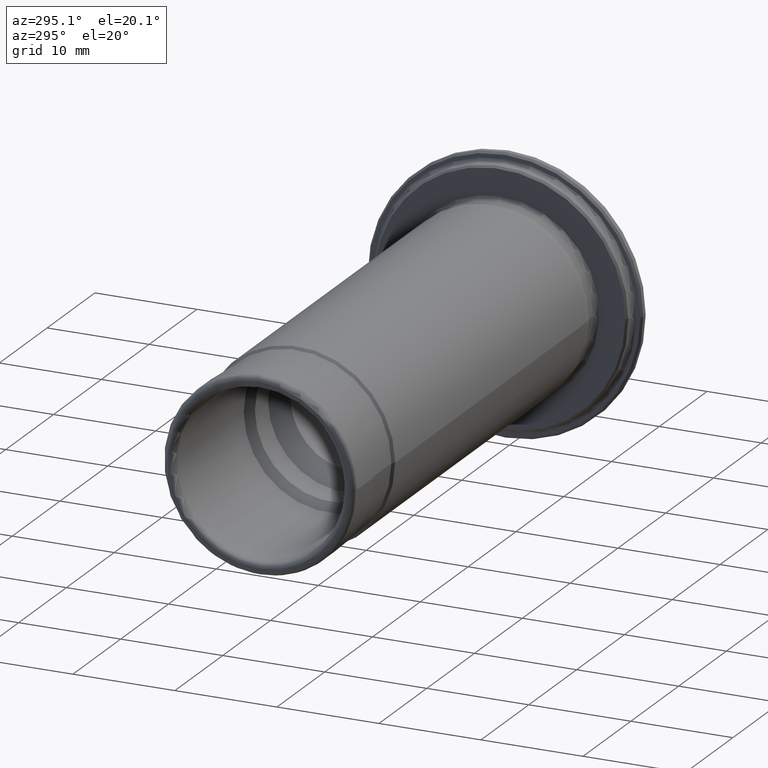
[diagram: clean part render]
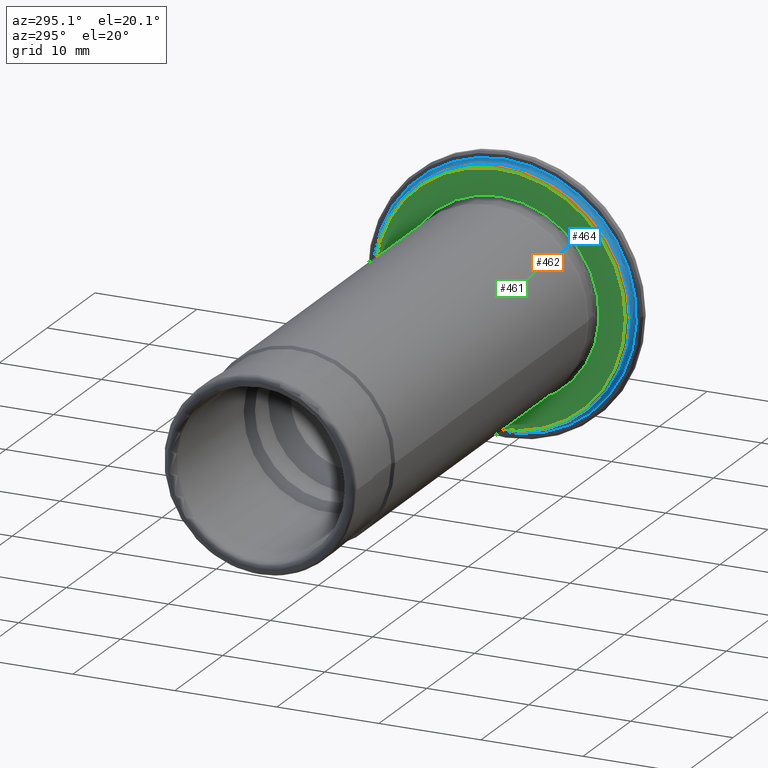
[diagram: same view with three faces highlighted in distinct colors, each labeled with its STEP entity id]
A machine part, auxiliary view with three faces highlighted in distinct colors.
Their STEP definitions:

[orange] entity #462 — the highlighted conical surface has half-angle 45 deg.
#25=CONICAL_SURFACE('',#533,12.4000000000002,0.785398163396198);
#37=LINE('',#807,#54);
#54=VECTOR('',#652,12.4000000000002);
#84=FACE_OUTER_BOUND('',#114,.T.);
#114=EDGE_LOOP('',(#335,#336,#337,#338));
#153=CIRCLE('',#532,12.3000000000001);
#154=CIRCLE('',#534,12.5000000000002);
#197=VERTEX_POINT('',#802);
#198=VERTEX_POINT('',#805);
#246=EDGE_CURVE('',#197,#197,#153,.T.);
#247=EDGE_CURVE('',#198,#198,#154,.T.);
#248=EDGE_CURVE('',#198,#197,#37,.T.);
#335=ORIENTED_EDGE('',*,*,#247,.F.);
#336=ORIENTED_EDGE('',*,*,#248,.T.);
#337=ORIENTED_EDGE('',*,*,#246,.T.);
#338=ORIENTED_EDGE('',*,*,#248,.F.);
#462=ADVANCED_FACE('',(#84),#25,.T.);
#532=AXIS2_PLACEMENT_3D('',#803,#646,#647);
#533=AXIS2_PLACEMENT_3D('',#804,#648,#649);
#534=AXIS2_PLACEMENT_3D('',#806,#650,#651);
#646=DIRECTION('center_axis',(1.,0.,0.));
#647=DIRECTION('ref_axis',(0.,0.,-1.));
#648=DIRECTION('center_axis',(1.,0.,0.));
#649=DIRECTION('ref_axis',(0.,1.,0.));
#650=DIRECTION('center_axis',(1.,0.,0.));
#651=DIRECTION('ref_axis',(0.,0.,-1.));
#652=DIRECTION('',(-0.707106781187432,0.707106781185663,8.6595605623441E-17));
#802=CARTESIAN_POINT('',(-2.0000000000001,-12.3000000000001,-1.50631556295126E-15));
#803=CARTESIAN_POINT('Origin',(-2.0000000000001,0.,0.));
#804=CARTESIAN_POINT('Origin',(-1.89999999999984,0.,0.));
#805=CARTESIAN_POINT('',(-1.79999999999957,-12.5000000000002,-1.53080849893421E-15));
#806=CARTESIAN_POINT('Origin',(-1.79999999999957,0.,0.));
#807=CARTESIAN_POINT('',(-1.89999999999984,-12.4000000000002,-1.51856203094274E-15));

[blue] entity #464 — the highlighted toroidal blend (fillet) surface has major radius 12.9 mm and minor (blend) radius 0.4 mm.
#86=FACE_OUTER_BOUND('',#116,.T.);
#116=EDGE_LOOP('',(#344,#345,#346,#347,#348));
#155=CIRCLE('',#536,12.4999999999993);
#156=CIRCLE('',#537,12.4999999999993);
#157=CIRCLE('',#539,0.4);
#158=CIRCLE('',#540,12.8999999999993);
#199=VERTEX_POINT('',#809);
#200=VERTEX_POINT('',#810);
#201=VERTEX_POINT('',#815);
#249=EDGE_CURVE('',#199,#200,#155,.T.);
#251=EDGE_CURVE('',#200,#199,#156,.T.);
#252=EDGE_CURVE('',#200,#201,#157,.T.);
#253=EDGE_CURVE('',#201,#201,#158,.T.);
#344=ORIENTED_EDGE('',*,*,#249,.T.);
#345=ORIENTED_EDGE('',*,*,#252,.T.);
#346=ORIENTED_EDGE('',*,*,#253,.F.);
#347=ORIENTED_EDGE('',*,*,#252,.F.);
#348=ORIENTED_EDGE('',*,*,#251,.T.);
#416=TOROIDAL_SURFACE('',#538,12.8999999999993,0.4);
#464=ADVANCED_FACE('',(#86),#416,.F.);
#536=AXIS2_PLACEMENT_3D('',#811,#655,#656);
#537=AXIS2_PLACEMENT_3D('',#813,#658,#659);
#538=AXIS2_PLACEMENT_3D('',#814,#660,#661);
#539=AXIS2_PLACEMENT_3D('',#816,#662,#663);
#540=AXIS2_PLACEMENT_3D('',#817,#664,#665);
#655=DIRECTION('center_axis',(1.,0.,0.));
#656=DIRECTION('ref_axis',(0.,0.,-1.));
#658=DIRECTION('center_axis',(1.,0.,0.));
#659=DIRECTION('ref_axis',(0.,0.,-1.));
#660=DIRECTION('center_axis',(1.,0.,0.));
#661=DIRECTION('ref_axis',(0.,0.,-1.));
#662=DIRECTION('center_axis',(0.,-1.,-1.22464679914735E-16));
#663=DIRECTION('ref_axis',(0.,-1.22464679914735E-16,1.));
#664=DIRECTION('center_axis',(1.,0.,0.));
#665=DIRECTION('ref_axis',(0.,0.,-1.));
#809=CARTESIAN_POINT('',(-1.4000000000027,-12.4999999999997,-1.53080849893416E-15));
#810=CARTESIAN_POINT('',(-1.4000000000027,-1.53080849893411E-15,12.4999999999993));
#811=CARTESIAN_POINT('Origin',(-1.4000000000027,0.,0.));
#813=CARTESIAN_POINT('Origin',(-1.4000000000027,0.,0.));
#814=CARTESIAN_POINT('Origin',(-1.40000000000177,0.,0.));
#815=CARTESIAN_POINT('',(-1.00000000000177,-1.5797943709E-15,12.8999999999993));
#816=CARTESIAN_POINT('Origin',(-1.40000000000177,-1.5797943709E-15,12.8999999999993));
#817=CARTESIAN_POINT('Origin',(-1.00000000000177,0.,0.));

[green] entity #461 — the highlighted planar face has unit normal (-1, 0, 0).
#14=FACE_BOUND('',#113,.T.);
#18=PLANE('',#531);
#83=FACE_OUTER_BOUND('',#112,.T.);
#112=EDGE_LOOP('',(#333));
#113=EDGE_LOOP('',(#334));
#152=CIRCLE('',#530,9.72499999999913);
#153=CIRCLE('',#532,12.3000000000001);
#196=VERTEX_POINT('',#798);
#197=VERTEX_POINT('',#802);
#245=EDGE_CURVE('',#196,#196,#152,.T.);
#246=EDGE_CURVE('',#197,#197,#153,.T.);
#333=ORIENTED_EDGE('',*,*,#246,.F.);
#334=ORIENTED_EDGE('',*,*,#245,.T.);
#461=ADVANCED_FACE('',(#83,#14),#18,.T.);
#530=AXIS2_PLACEMENT_3D('',#800,#642,#643);
#531=AXIS2_PLACEMENT_3D('',#801,#644,#645);
#532=AXIS2_PLACEMENT_3D('',#803,#646,#647);
#642=DIRECTION('center_axis',(1.,0.,0.));
#643=DIRECTION('ref_axis',(0.,0.,-1.));
#644=DIRECTION('center_axis',(-1.,0.,0.));
#645=DIRECTION('ref_axis',(0.,0.,1.));
#646=DIRECTION('center_axis',(1.,0.,0.));
#647=DIRECTION('ref_axis',(0.,0.,-1.));
#798=CARTESIAN_POINT('',(-1.99999999999996,-1.19096901217069E-15,9.72499999999913));
#800=CARTESIAN_POINT('Origin',(-1.99999999999996,0.,0.));
#801=CARTESIAN_POINT('Origin',(-2.0000000000001,12.3000000000001,0.));
#802=CARTESIAN_POINT('',(-2.0000000000001,-12.3000000000001,-1.50631556295126E-15));
#803=CARTESIAN_POINT('Origin',(-2.0000000000001,0.,0.));